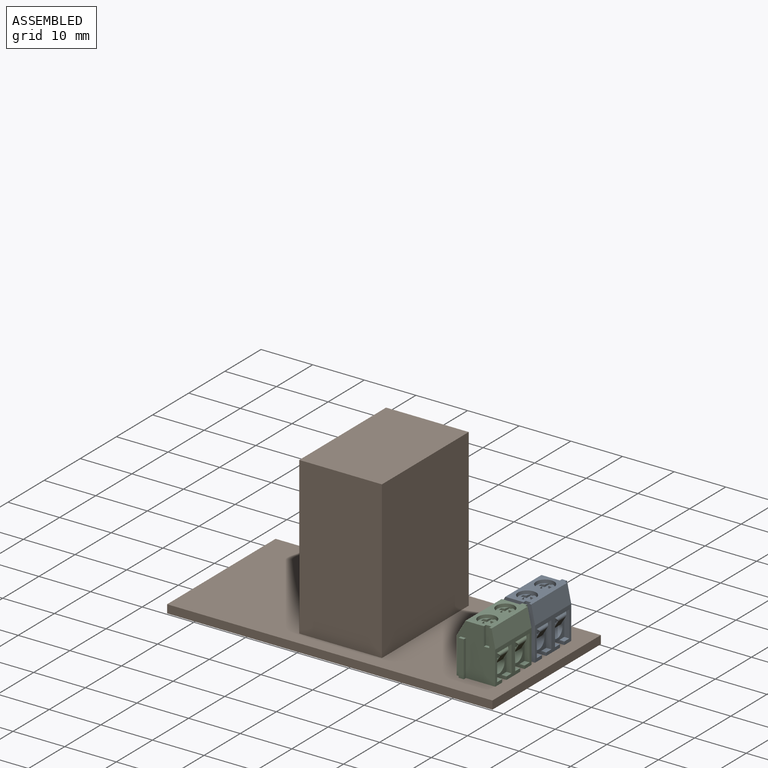
[diagram: assembled view]
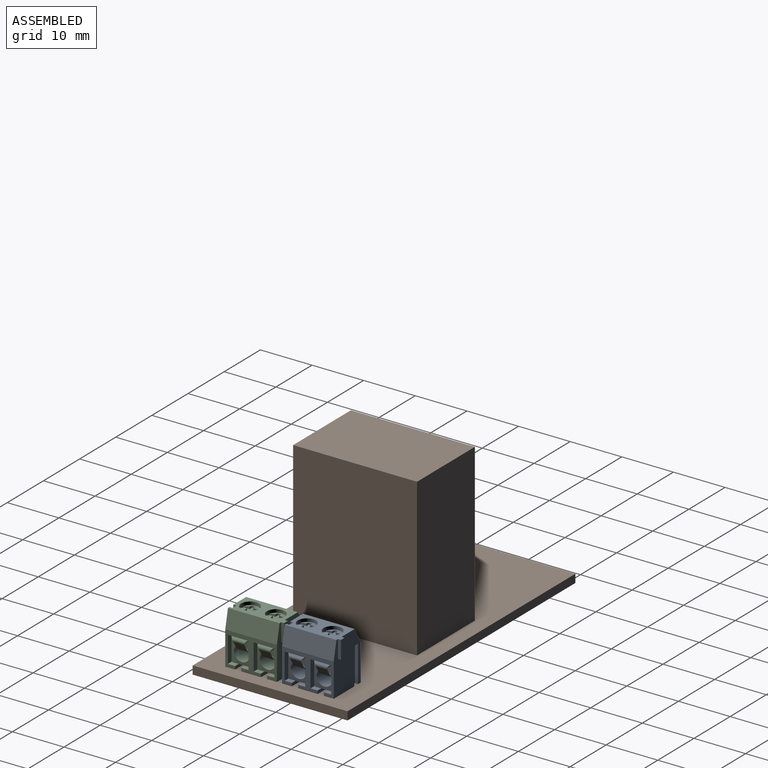
[diagram: assembled view, second angle]
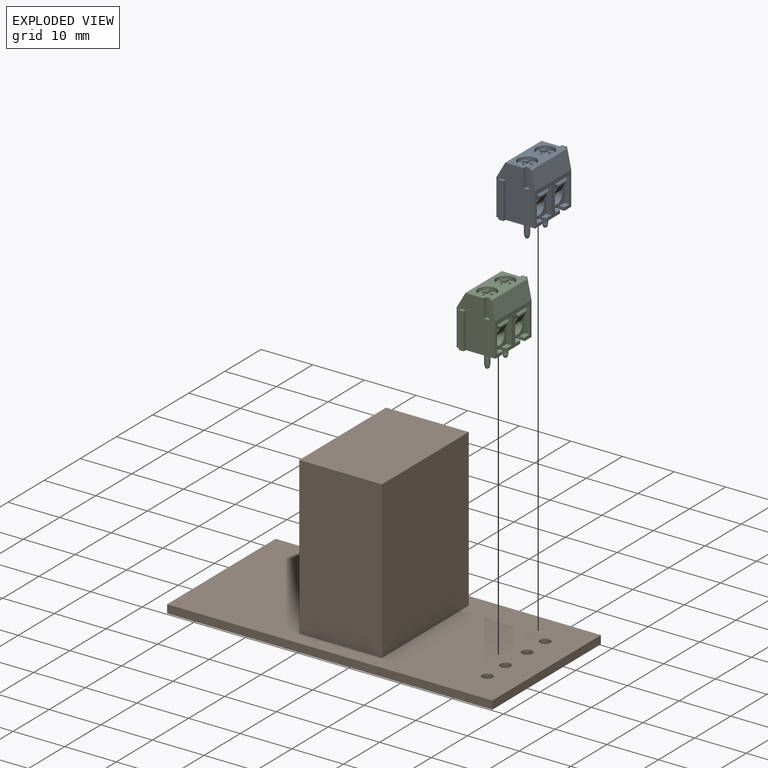
[diagram: exploded view]
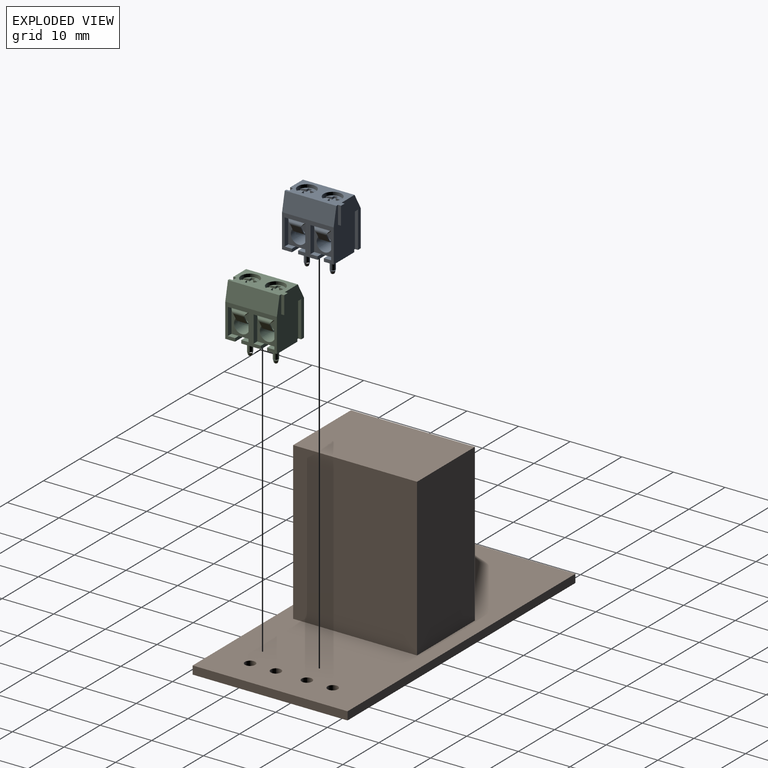
[diagram: exploded view, second angle]
ASSEMBLY  parts=3 mates=2
PART A: 157 faces, bbox 11.2x13.5x7.5 mm
  f0: sphere r=5mm, area 2.5mm2, adj f1,f9,f10,f11,f12,f13
  f1: plane 1.22x0.44mm, normal (0,0,1), area 0.4mm2, adj f0,f2,f9,f13
  f2: plane 3.2x2mm, normal (0,1,0), area 3.1mm2, adj f1,f3,f5,f6,f7,f8,f9,f10
  f3: plane 1.22x0.44mm, normal (0,0,-1), area 0.4mm2, adj f2,f4,f5,f13
  f4: sphere r=5mm, area 2.5mm2, adj f3,f5,f6,f7,f8,f13
  f5: plane 0.65x0.44mm, normal (-1,0,0), area 0.3mm2, adj f2,f3,f4,f6
  f6: plane 0.71x0.36mm, normal (0,0,-1), area 0.2mm2, adj f2,f4,f5,f7
  f7: plane 0.65x0.44mm, normal (1,0,0), area 0.3mm2, adj f2,f4,f6,f8
  f8: plane 1.22x0.44mm, normal (0,0,-1), area 0.4mm2, adj f2,f4,f7,f13
  f9: plane 0.65x0.44mm, normal (-1,0,0), area 0.3mm2, adj f0,f1,f2,f10
  f10: plane 0.71x0.36mm, normal (0,0,1), area 0.2mm2, adj f0,f2,f9,f11
  f11: plane 0.65x0.44mm, normal (1,0,0), area 0.3mm2, adj f0,f2,f10,f12
  f12: plane 1.22x0.44mm, normal (0,0,1), area 0.4mm2, adj f0,f2,f11,f13
  f13: cylinder r=1.6mm len=3.2mm, axis (0,1,0), area 4.2mm2, adj f0,f1,f2,f3,f4,f8,f12,f14
  f14: plane 3.2x3.2mm, normal (0,-1,0), area 4.9mm2, adj f13,f15
  f15: cylinder r=1mm len=2mm, axis (0,1,0), area 12.6mm2, adj f14,f16
  f16: plane 3.5x3.5mm, normal (0,1,0), area 6.5mm2, adj f15,f17
  f17: cylinder r=1.75mm len=3.5mm, axis (0,1,0), area 33mm2, adj f16,f18
  f18: plane 10.58x5.03mm, normal (0,1,0), area 31mm2, adj f17,f19,f37,f39,f40,f137,f139,f140
  f19: cylinder r=1.75mm len=3.5mm, axis (0,1,0), area 33mm2, adj f18,f20
  f20: plane 3.5x3.5mm, normal (0,1,0), area 6.5mm2, adj f19,f21
  f21: cylinder r=1mm len=2mm, axis (0,-1,0), area 12.6mm2, adj f20,f22
  f22: plane 3.2x3.2mm, normal (0,-1,0), area 4.9mm2, adj f21,f23
  f23: cylinder r=1.6mm len=3.2mm, axis (0,-1,0), area 4.2mm2, adj f22,f24,f28,f32,f33,f34,f35,f36
  f24: plane 1.22x0.44mm, normal (0,0,1), area 0.4mm2, adj f23,f25,f34,f36
  f25: plane 0.65x0.44mm, normal (1,0,0), area 0.3mm2, adj f24,f26,f34,f36
  f26: plane 0.71x0.36mm, normal (0,0,1), area 0.2mm2, adj f25,f27,f34,f36
  f27: plane 0.65x0.44mm, normal (-1,0,0), area 0.3mm2, adj f26,f34,f35,f36
  f28: plane 1.22x0.44mm, normal (0,0,-1), area 0.4mm2, adj f23,f29,f32,f34
  f29: plane 0.65x0.44mm, normal (1,0,0), area 0.3mm2, adj f28,f30,f32,f34
  f30: plane 0.71x0.36mm, normal (0,0,-1), area 0.2mm2, adj f29,f31,f32,f34
  f31: plane 0.65x0.44mm, normal (-1,0,0), area 0.3mm2, adj f30,f32,f33,f34
  f32: sphere r=5mm, area 2.5mm2, adj f23,f28,f29,f30,f31,f33
  f33: plane 1.22x0.44mm, normal (0,0,-1), area 0.4mm2, adj f23,f31,f32,f34
  f34: plane 3.2x2mm, normal (0,1,0), area 3.1mm2, adj f23,f24,f25,f26,f27,f28,f29,f30
  f35: plane 1.22x0.44mm, normal (0,0,1), area 0.4mm2, adj f23,f27,f34,f36
  f36: sphere r=5mm, area 2.5mm2, adj f23,f24,f25,f26,f27,f35
  f37: plane 3.56x1.05mm, normal (-1,0,0), area 3.7mm2, adj f18,f38,f39,f144
  f38: plane 1.05x0.6mm, normal (0,1,0), area 0.6mm2, adj f37,f39,f143,f144
  f39: plane 3.56x0.6mm, normal (0,0,1), area 2.1mm2, adj f18,f37,f38,f143
  f40: plane 10x3mm, normal (0,0.5,-0.87), area 34.6mm2, adj f18,f41,f141,f143
  f41: plane 10x7mm, normal (0,0,-1), area 70mm2, adj f40,f42,f141,f143
  f42: plane 10.58x7.5mm, normal (0,-1,0), area 65.3mm2, adj f41,f43,f45,f46,f47,f90,f91,f92
  f43: plane 7x0.58mm, normal (0,0,-1), area 4.1mm2, adj f42,f44,f45,f143
  f44: plane 1x0.58mm, normal (0,1,0), area 0.6mm2, adj f43,f45,f46,f143
  f45: plane 7x1mm, normal (-1,0,0), area 7mm2, adj f42,f43,f44,f46
  f46: plane 7x0.58mm, normal (0,0,1), area 4.1mm2, adj f42,f44,f45,f143
  f47: plane 4x0.62mm, normal (1,0,0), area 2.5mm2, adj f42,f48,f84,f90,f132
  f48: plane 1.4x1mm, normal (0,1,0), area 1.4mm2, adj f47,f49,f79,f132
  f49: plane 5.1x1mm, normal (1,0,0), area 5.1mm2, adj f48,f50,f78,f79,f132
  f50: plane 4x1mm, normal (0,-1,0), area 3.4mm2, adj f49,f51,f53,f77,f78,f132
  f51: plane 5.1x1mm, normal (-1,0,0), area 5.1mm2, adj f50,f52,f53,f79,f132
  f52: plane 1.4x1mm, normal (0,1,0), area 1.4mm2, adj f51,f79,f91,f132
  f53: plane 0.15x0.15mm, normal (0.82,0,0.57), area 0mm2, adj f50,f51,f54,f76
  f54: plane 4x0.15mm, normal (0,-1,0), area 0.6mm2, adj f53,f55,f78,f79
  f55: cylinder r=0.3mm len=3.79mm, axis (1,0,0), area 0.8mm2, adj f54,f56,f75,f76
  f56: plane 3.37x0.34mm, normal (0,-0.71,-0.71), area 1.5mm2, adj f55,f57,f73,f74
  f57: plane 0.45x0.45mm, normal (-0.82,-0.41,0.41), area 0.1mm2, adj f56,f58,f72,f75
  f58: plane 3.37x0.34mm, normal (0,0.71,0.71), area 1.5mm2, adj f57,f59,f74,f77
  f59: cylinder r=0.45mm len=2.7mm, axis (1,0,0), area 1.4mm2, adj f58,f60,f71,f72
  f60: bspline ~0.55x0.35mm, area 0.1mm2, adj f59,f61,f73,f74
  f61: plane 0.13x0.08mm, normal (0.82,-0.49,-0.3), area 0mm2, adj f60,f62,f70,f71
  f62: plane 2x1.41mm, normal (0,0.52,-0.86), area 3.3mm2, adj f61,f63,f64,f69,f70,f73
  f63: plane 0.13x0.08mm, normal (-0.82,-0.49,-0.3), area 0mm2, adj f62,f64,f71,f72
  f64: plane 4.24x1.71mm, normal (-1,0,0), area 0.8mm2, adj f62,f63,f65,f66,f67,f68,f69,f71
  f65: cylinder r=0.45mm len=2mm, axis (1,0,0), area 0.9mm2, adj f64,f66,f70,f71
  f66: plane 3x2mm, normal (0,-1,-0.02), area 6mm2, adj f64,f65,f67,f70
  f67: plane 2x0.15mm, normal (0,0.02,-1), area 0.3mm2, adj f64,f66,f68,f70
  f68: plane 3x2mm, normal (0,1,0.02), area 6mm2, adj f64,f67,f69,f70
  f69: cylinder r=0.3mm len=2mm, axis (1,0,0), area 0.6mm2, adj f62,f64,f68,f70
  f70: plane 4.24x1.71mm, normal (1,0,0), area 0.8mm2, adj f61,f62,f65,f66,f67,f68,f69,f71
  f71: plane 2x1.41mm, normal (0,-0.52,0.86), area 3.3mm2, adj f59,f61,f63,f64,f65,f70
  f72: bspline ~0.55x0.35mm, area 0.1mm2, adj f57,f59,f63,f73
  f73: cylinder r=0.3mm len=2.7mm, axis (1,0,0), area 0.9mm2, adj f56,f60,f62,f72
  f74: plane 0.45x0.45mm, normal (0.82,-0.41,0.41), area 0.1mm2, adj f56,f58,f60,f76
  f75: bspline ~0.32x0.24mm, area 0.1mm2, adj f55,f57,f77,f78
  f76: bspline ~0.32x0.24mm, area 0.1mm2, adj f53,f55,f74,f77
  f77: cylinder r=0.45mm len=3.79mm, axis (1,0,0), area 1.3mm2, adj f50,f58,f75,f76
  f78: plane 0.15x0.15mm, normal (-0.82,0,0.57), area 0mm2, adj f49,f50,f54,f75
  f79: plane 4.95x4mm, normal (0,0,1), area 12.7mm2, adj f48,f49,f51,f52,f54,f80,f84
  f80: cylinder r=1.5mm len=3.5mm, axis (0,0,1), area 29.6mm2, adj f79,f81,f83
  f81: cylinder r=1mm len=2mm, axis (0,1,0), area 2.9mm2, adj f80,f82
  f82: plane 2x2mm, normal (0,-1,0), area 3.1mm2, adj f81
  f83: plane 3x3mm, normal (0,0,1), area 7.1mm2, adj f80
  f84: plane 3x1.2mm, normal (0,-1,0), area 2.8mm2, adj f47,f79,f85,f90,f91
  f85: cylinder r=0.5mm len=3.35mm, axis (0,1,0), area 10.5mm2, adj f84,f86
  f86: sphere r=0.5mm, area 0.3mm2, adj f85,f87
  f87: cone r=0.35mm half-angle=15.9deg, axis (0,1,0), area 1.2mm2, adj f86,f88
  f88: torus R=0.11mm, axis (0,1,0), area 0.5mm2, adj f87,f89
  f89: plane 0.22x0.22mm, normal (0,-1,0), area 0mm2, adj f88
  f90: plane 1.2x0.62mm, normal (0,0,1), area 0.7mm2, adj f42,f47,f84,f91
  f91: plane 4x0.62mm, normal (-1,0,0), area 2.5mm2, adj f42,f52,f84,f90,f132
  f92: plane 4x0.62mm, normal (1,0,0), area 2.5mm2, adj f42,f93,f127,f130,f132
  f93: plane 1.4x1mm, normal (0,1,0), area 1.4mm2, adj f92,f94,f122,f132
  f94: plane 5.1x1mm, normal (1,0,0), area 5.1mm2, adj f93,f95,f121,f122,f132
  f95: plane 4.03x1.03mm, normal (0,-1,0), area 2.6mm2, adj f94,f96,f116,f117,f118,f120,f121,f132
  f96: bspline ~0.35x0.29mm, area 0.1mm2, adj f95,f97,f115,f116,f120
  f97: cylinder r=0.3mm len=3.8mm, axis (1,0,0), area 0.8mm2, adj f96,f98,f114,f117
  f98: plane 3.36x0.33mm, normal (0,-0.71,-0.71), area 1.4mm2, adj f97,f99,f113,f115
  f99: plane 0.47x0.47mm, normal (-0.82,-0.41,0.41), area 0.1mm2, adj f98,f100,f112,f117
  f100: plane 3.36x0.33mm, normal (0,0.71,0.71), area 1.4mm2, adj f99,f101,f115,f116
  f101: cylinder r=0.5mm len=2.7mm, axis (1,0,0), area 1.5mm2, adj f100,f102,f103,f110,f111,f112
  f102: bspline ~0.58x0.35mm, area 0.1mm2, adj f101,f103,f113,f115
  f103: plane 4.25x1.77mm, normal (1,0,0), area 1mm2, adj f101,f102,f104,f105,f106,f107,f108,f109
  f104: plane 2x1.4mm, normal (0,0.52,-0.86), area 3.3mm2, adj f103,f105,f111,f113
  f105: cylinder r=0.3mm len=2mm, axis (1,0,0), area 0.6mm2, adj f103,f104,f106,f111
  f106: plane 2.95x2mm, normal (0,1,0.02), area 5.9mm2, adj f103,f105,f107,f111
  f107: plane 2x0.2mm, normal (0,0.02,-1), area 0.4mm2, adj f103,f106,f108,f111
  f108: plane 2.95x2mm, normal (0,-1,-0.02), area 5.9mm2, adj f103,f107,f109,f111
  f109: cylinder r=0.5mm len=2mm, axis (1,0,0), area 1mm2, adj f103,f108,f110,f111
  f110: plane 2x1.4mm, normal (0,-0.52,0.86), area 3.3mm2, adj f101,f103,f109,f111
  f111: plane 4.25x1.77mm, normal (-1,0,0), area 1mm2, adj f101,f104,f105,f106,f107,f108,f109,f110
  f112: bspline ~0.58x0.35mm, area 0.1mm2, adj f99,f101,f111,f113
  f113: cylinder r=0.3mm len=2.7mm, axis (1,0,0), area 0.9mm2, adj f98,f102,f103,f104,f111,f112
  f114: plane 4x0.14mm, normal (0,-1,0), area 0.6mm2, adj f97,f120,f121,f122
  f115: plane 0.47x0.47mm, normal (0.82,-0.41,0.41), area 0.1mm2, adj f96,f98,f100,f102
  f116: cylinder r=0.5mm len=3.55mm, axis (1,0,0), area 0.6mm2, adj f95,f96,f100,f117
  f117: bspline ~0.35x0.29mm, area 0.1mm2, adj f95,f97,f99,f116,f121
  f118: plane 5.1x1mm, normal (-1,0,0), area 5.1mm2, adj f95,f119,f120,f122,f132
  f119: plane 1.4x1mm, normal (0,1,0), area 1.4mm2, adj f118,f122,f131,f132
  f120: plane 0.15x0.14mm, normal (0.82,0,0.57), area 0mm2, adj f95,f96,f114,f118
  f121: plane 0.15x0.14mm, normal (-0.82,0,0.57), area 0mm2, adj f94,f95,f114,f117
  f122: plane 4.95x4mm, normal (0,0,1), area 12.7mm2, adj f93,f94,f114,f118,f119,f123,f127
  f123: cylinder r=1.5mm len=3.5mm, axis (0,0,1), area 29.6mm2, adj f122,f124,f126
  f124: cylinder r=1mm len=2mm, axis (0,-1,0), area 2.9mm2, adj f123,f125
  f125: plane 2x2mm, normal (0,-1,0), area 3.1mm2, adj f124
  f126: plane 3x3mm, normal (0,0,1), area 7.1mm2, adj f123
  f127: plane 3x1.2mm, normal (0,-1,0), area 2.8mm2, adj f92,f122,f128,f130,f131
  f128: cylinder r=0.5mm len=3.35mm, axis (0,1,0), area 10.5mm2, adj f127,f129
  f129: sphere r=0.5mm, area 1.6mm2, adj f128
  f130: plane 1.2x0.62mm, normal (0,0,1), area 0.7mm2, adj f42,f92,f127,f131
  f131: plane 4x0.62mm, normal (-1,0,0), area 2.5mm2, adj f42,f119,f127,f130,f132
  f132: plane 10x6.5mm, normal (0,0,1), area 22.7mm2, adj f42,f47,f48,f49,f50,f51,f52,f91
  f133: plane 7.06x0.6mm, normal (0,0,-1), area 4.2mm2, adj f42,f134,f135,f141
  f134: plane 1.05x0.6mm, normal (0,-1,0), area 0.6mm2, adj f133,f135,f136,f141
  f135: plane 7.06x1.05mm, normal (1,0,0), area 7.4mm2, adj f42,f133,f134,f136
  f136: plane 7.06x0.6mm, normal (0,0,1), area 4.2mm2, adj f42,f134,f135,f141
  f137: plane 3.5x0.58mm, normal (0,0,-1), area 2mm2, adj f18,f138,f139,f141
  f138: plane 1x0.58mm, normal (0,-1,0), area 0.6mm2, adj f137,f139,f140,f141
  f139: plane 3.5x1mm, normal (1,0,0), area 3.5mm2, adj f18,f137,f138,f140
  f140: plane 3.5x0.58mm, normal (0,0,1), area 2mm2, adj f18,f138,f139,f141
  f141: plane 10x7.5mm, normal (1,0,0), area 60.2mm2, adj f18,f40,f41,f42,f132,f133,f134,f136
  f142: plane 10x3.5mm, normal (0,0.21,0.98), area 35.8mm2, adj f18,f132,f141,f143
  f143: plane 10x7.5mm, normal (-1,0,0), area 60.4mm2, adj f18,f38,f39,f40,f41,f42,f43,f44
  f144: plane 3.56x0.6mm, normal (0,0,-1), area 2.1mm2, adj f18,f37,f38,f143
  f145: plane 2.1x2.1mm, normal (0,-1,0), area 0.3mm2, adj f146,f148
  f146: cylinder r=1.05mm len=2.1mm, axis (0,-1,0), area 1mm2, adj f145,f147
  f147: plane 2.1x2.1mm, normal (0,1,0), area 0.3mm2, adj f146,f148
  f148: cylinder r=1mm len=2mm, axis (0,1,0), area 0.9mm2, adj f145,f147
  f149: cylinder r=1mm len=2mm, axis (0,-1,0), area 0.9mm2, adj f150,f152
  f150: plane 2.1x2.1mm, normal (0,1,0), area 0.3mm2, adj f149,f151
  f151: cylinder r=1.05mm len=2.1mm, axis (0,-1,0), area 1mm2, adj f150,f152
  f152: plane 2.1x2.1mm, normal (0,-1,0), area 0.3mm2, adj f149,f151
  f153: plane 0.22x0.22mm, normal (0,-1,0), area 0mm2, adj f154
  f154: torus R=0.11mm, axis (0,1,0), area 0.5mm2, adj f153,f155
  f155: cone r=0.35mm half-angle=15.9deg, axis (0,1,0), area 1.2mm2, adj f154,f156
  f156: sphere r=0.5mm, area 1.1mm2, adj f155
PART B: 15 faces, bbox 63x30x32 mm
  f0: plane 63x1.6mm, normal (0,1,0), area 100.8mm2, adj f1,f7,f8,f9
  f1: plane 30x1.6mm, normal (-1,0,0), area 48mm2, adj f0,f2,f8,f9
  f2: plane 63x1.6mm, normal (0,-1,0), area 100.8mm2, adj f1,f7,f8,f9
  f3: cylinder r=1mm len=2mm, axis (0,0,-1), area 10.1mm2, adj f8,f9
  f4: cylinder r=1mm len=2mm, axis (0,0,-1), area 10.1mm2, adj f8,f9
  f5: cylinder r=1mm len=2mm, axis (0,0,-1), area 10.1mm2, adj f8,f9
  f6: cylinder r=1mm len=2mm, axis (0,0,-1), area 10.1mm2, adj f8,f9
  f7: plane 30x1.6mm, normal (1,0,0), area 48mm2, adj f0,f2,f8,f9
  f8: plane 63x30mm, normal (0,0,1), area 1493.4mm2, adj f0,f1,f2,f3,f4,f5,f6,f7
  f9: plane 63x30mm, normal (0,0,-1), area 1877.4mm2, adj f0,f1,f2,f3,f4,f5,f6,f7
  f10: plane 24x16mm, normal (0,0,1), area 384mm2, adj f11,f12,f13,f14
  f11: plane 30.4x24mm, normal (1,0,0), area 729.6mm2, adj f8,f10,f12,f14
  f12: plane 30.4x16mm, normal (0,-1,0), area 486.4mm2, adj f8,f10,f11,f13
  f13: plane 30.4x24mm, normal (-1,0,0), area 729.6mm2, adj f8,f10,f12,f14
  f14: plane 30.4x16mm, normal (0,1,0), area 486.4mm2, adj f8,f10,f11,f13
PART C: same geometry as A
PLACE A rot(axis=(0.58,0.58,0.58),120deg) t=(25.52,5.41,-14.46)mm
PLACE B t=(-0.09,-0.09,-16.06)mm
PLACE C rot(axis=(0.58,0.58,0.58),120deg) t=(25.52,-5.59,-14.46)mm
MATE fastened A.f128 <-> B.f3  axis (0,0,-1) through (25.52,7.91,-14.46)mm
MATE fastened C.f128 <-> B.f5  axis (0,0,-1) through (25.52,-3.09,-14.46)mm
